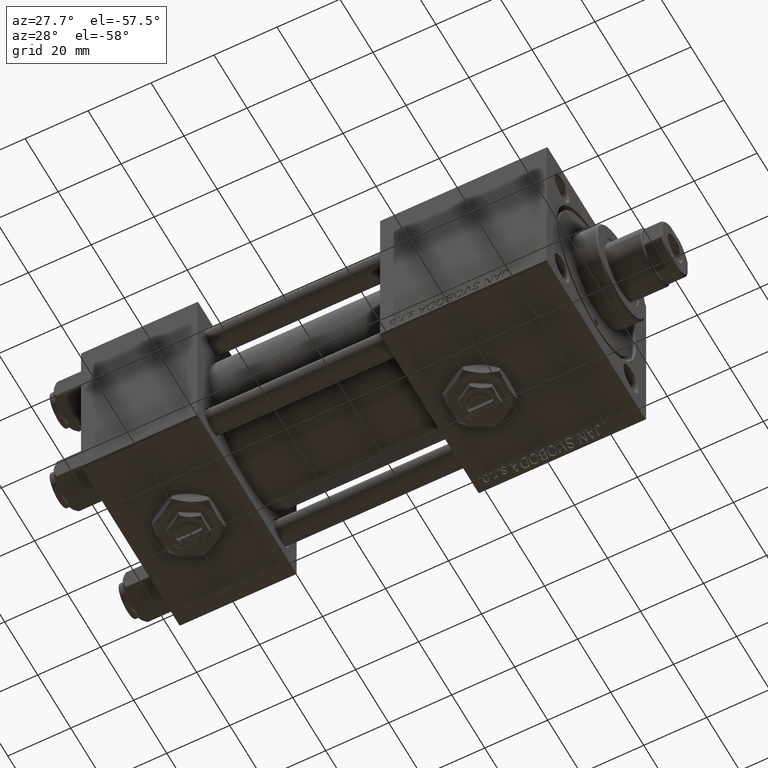
[diagram: clean part render]
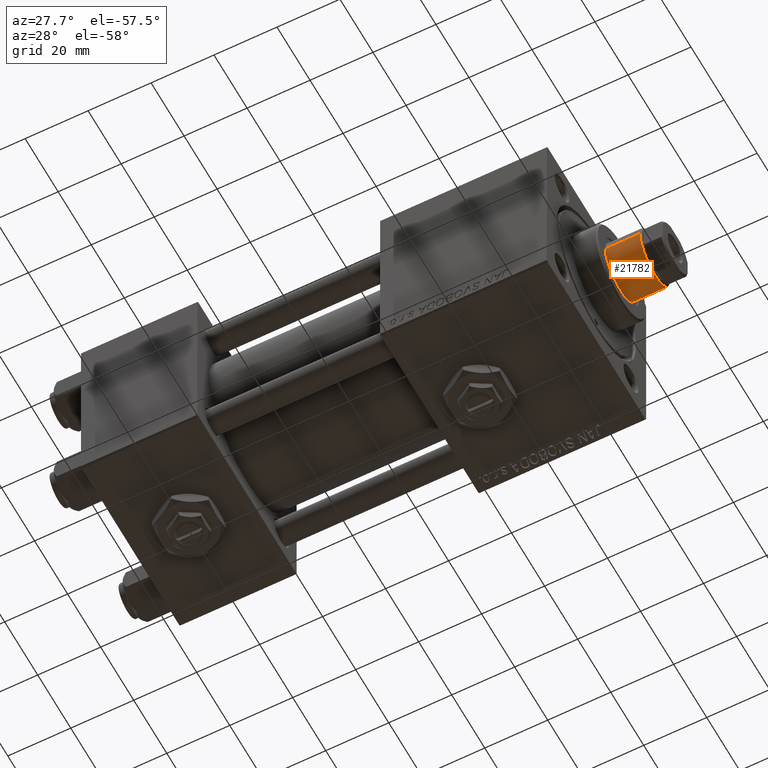
[diagram: same view with one face highlighted and labeled with its STEP entity id]
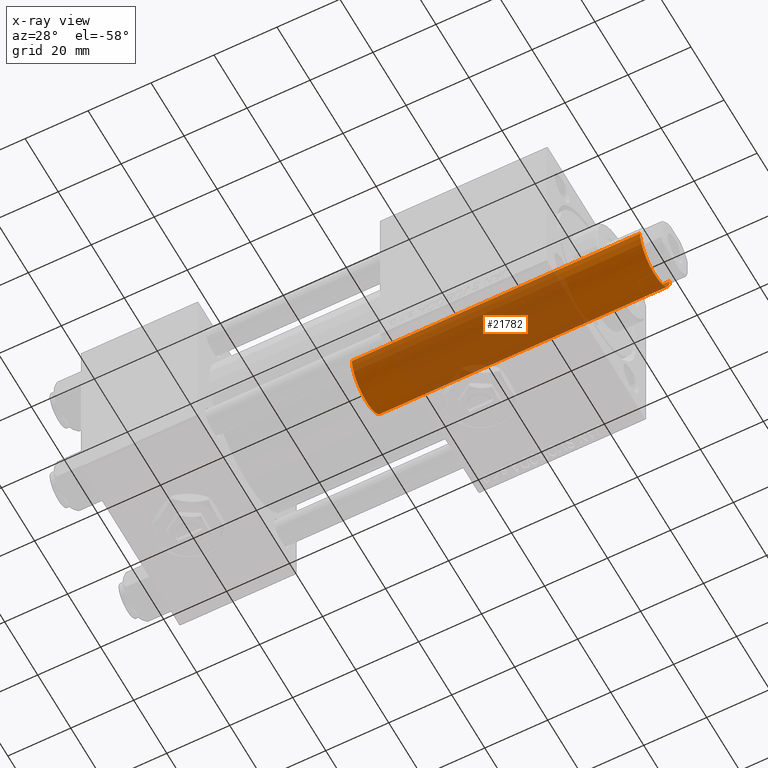
[diagram: x-ray of the same camera — body ghosted, the highlighted face saturated]
A machine part, auxiliary view. The second image highlights one B-rep face of the part: STEP entity #21782.
The next image is the same camera in x-ray: the body ghosted, the highlighted face saturated — about 62% of this face is hidden behind the body in this view.
In plain terms, the highlighted cylindrical surface (edge-blend (fillet) strip) has radius 9 mm, axis along (-1, 0, 0).
Its self-contained STEP definition (entity closure, byte-faithful):
#2992 = EDGE_CURVE ( 'NONE', #30202, #41444, #20960, .T. ) ;
#3638 = EDGE_CURVE ( 'NONE', #29680, #41444, #39776, .T. ) ;
#6658 = EDGE_CURVE ( 'NONE', #14304, #30202, #24964, .T. ) ;
#9258 = CARTESIAN_POINT ( 'NONE',  ( -9.000000000000000000, 0.000000000000000000, 38.00000000000000000 ) ) ;
#14238 = ORIENTED_EDGE ( 'NONE', *, *, #6658, .T. ) ;
#14304 = VERTEX_POINT ( 'NONE', #32894 ) ;
#14679 = FACE_OUTER_BOUND ( 'NONE', #47699, .T. ) ;
#15260 = CARTESIAN_POINT ( 'NONE',  ( 0.000000000000000000, 0.000000000000000000, 38.00000000000000000 ) ) ;
#15786 = DIRECTION ( 'NONE',  ( 0.000000000000000000, 0.000000000000000000, 1.000000000000000000 ) ) ;
#17129 = CIRCLE ( 'NONE', #46735, 9.000000000000000000 ) ;
#18660 = EDGE_CURVE ( 'NONE', #29680, #14304, #17129, .T. ) ;
#20113 = VECTOR ( 'NONE', #51464, 1000.000000000000000 ) ;
#20960 = CIRCLE ( 'NONE', #26022, 9.000000000000000000 ) ;
#21782 = ADVANCED_FACE ( 'NONE', ( #14679 ), #29613, .T. ) ;
#23220 = CARTESIAN_POINT ( 'NONE',  ( 9.000000000000000000, 1.102182119232617714E-15, 38.00000000000000000 ) ) ;
#23870 = CARTESIAN_POINT ( 'NONE',  ( -9.000000000000000000, 0.000000000000000000, 130.0000000000000000 ) ) ;
#24964 = LINE ( 'NONE', #32662, #40375 ) ;
#26022 = AXIS2_PLACEMENT_3D ( 'NONE', #15260, #15786, #44142 ) ;
#28680 = DIRECTION ( 'NONE',  ( -0.000000000000000000, -0.000000000000000000, -1.000000000000000000 ) ) ;
#29613 = CYLINDRICAL_SURFACE ( 'NONE', #34065, 9.000000000000000000 ) ;
#29680 = VERTEX_POINT ( 'NONE', #33136 ) ;
#30202 = VERTEX_POINT ( 'NONE', #23220 ) ;
#32662 = CARTESIAN_POINT ( 'NONE',  ( 9.000000000000000000, 1.102182119232617714E-15, 130.0000000000000000 ) ) ;
#32894 = CARTESIAN_POINT ( 'NONE',  ( 9.000000000000000000, 1.102182119232617714E-15, 129.5000000000000000 ) ) ;
#33136 = CARTESIAN_POINT ( 'NONE',  ( -9.000000000000000000, 0.000000000000000000, 129.5000000000000000 ) ) ;
#34065 = AXIS2_PLACEMENT_3D ( 'NONE', #50294, #41814, #39063 ) ;
#35449 = CARTESIAN_POINT ( 'NONE',  ( 0.000000000000000000, 0.000000000000000000, 129.5000000000000000 ) ) ;
#39063 = DIRECTION ( 'NONE',  ( -1.000000000000000000, 0.000000000000000000, 0.000000000000000000 ) ) ;
#39408 = ORIENTED_EDGE ( 'NONE', *, *, #2992, .T. ) ;
#39776 = LINE ( 'NONE', #23870, #20113 ) ;
#40375 = VECTOR ( 'NONE', #28680, 1000.000000000000000 ) ;
#41444 = VERTEX_POINT ( 'NONE', #9258 ) ;
#41814 = DIRECTION ( 'NONE',  ( -0.000000000000000000, -0.000000000000000000, -1.000000000000000000 ) ) ;
#44142 = DIRECTION ( 'NONE',  ( 1.000000000000000000, 0.000000000000000000, 0.000000000000000000 ) ) ;
#44362 = ORIENTED_EDGE ( 'NONE', *, *, #18660, .T. ) ;
#44917 = ORIENTED_EDGE ( 'NONE', *, *, #3638, .F. ) ;
#46735 = AXIS2_PLACEMENT_3D ( 'NONE', #35449, #50843, #51369 ) ;
#47699 = EDGE_LOOP ( 'NONE', ( #44362, #14238, #39408, #44917 ) ) ;
#50294 = CARTESIAN_POINT ( 'NONE',  ( 0.000000000000000000, 0.000000000000000000, 130.0000000000000000 ) ) ;
#50843 = DIRECTION ( 'NONE',  ( 0.000000000000000000, 0.000000000000000000, -1.000000000000000000 ) ) ;
#51369 = DIRECTION ( 'NONE',  ( 1.000000000000000000, 0.000000000000000000, 0.000000000000000000 ) ) ;
#51464 = DIRECTION ( 'NONE',  ( -0.000000000000000000, -0.000000000000000000, -1.000000000000000000 ) ) ;